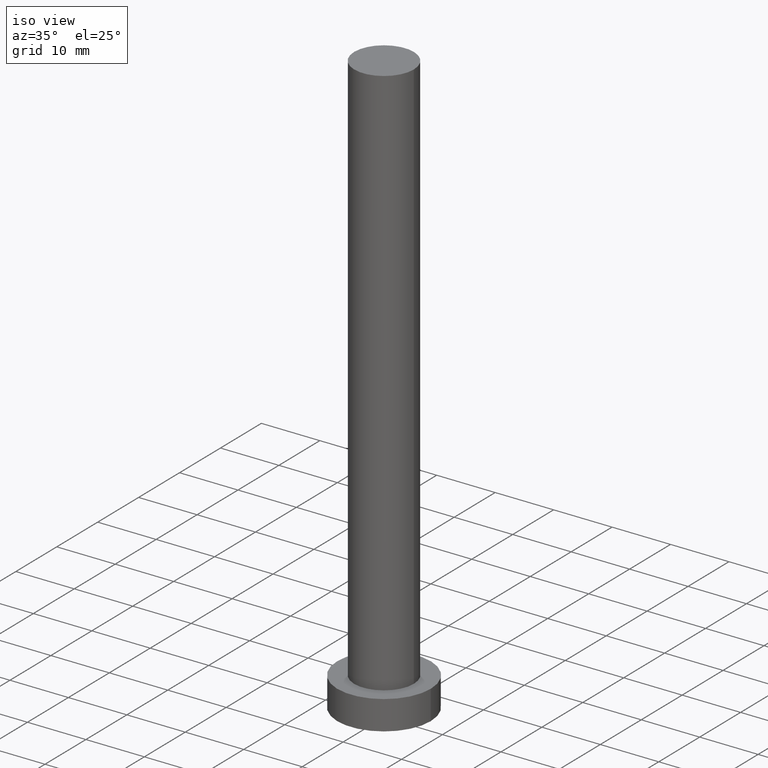
[diagram: clean part render]
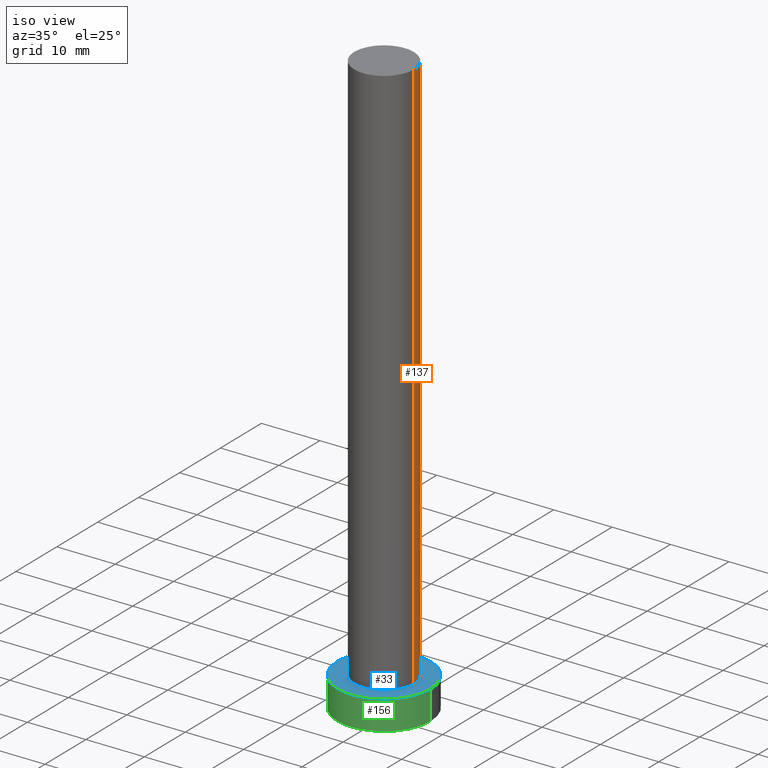
[diagram: same view with three faces highlighted in distinct colors, each labeled with its STEP entity id]
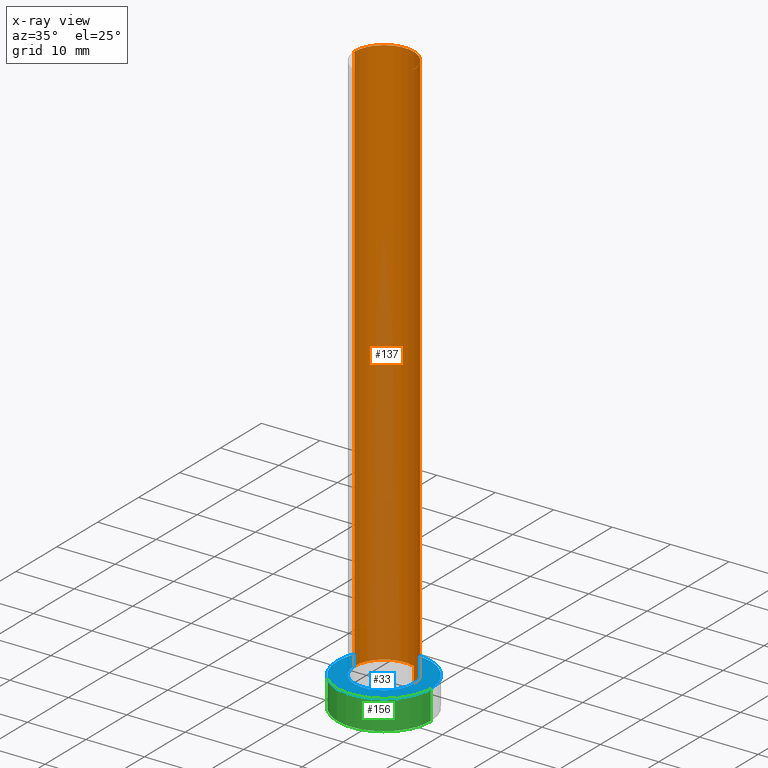
[diagram: x-ray of the same camera — body ghosted, the three highlighted faces saturated]
A machine part, iso view with three faces highlighted in distinct colors.
The next image is the same camera in x-ray (body ghosted, the three faces saturated) — at least one of them is partly hidden behind the body in this view.
Their STEP definitions:

[orange] entity #137 — the highlighted cylindrical surface (edge-blend (fillet) strip) has radius 5.1 mm, axis along (-0, -0, -1).
#6 = EDGE_LOOP ( 'NONE', ( #191, #111, #104, #48 ) ) ;
#13 = LINE ( 'NONE', #14, #27 ) ;
#14 = CARTESIAN_POINT ( 'NONE',  ( -5.100000000000001421, 0.000000000000000000, 100.0000000000000000 ) ) ;
#26 = DIRECTION ( 'NONE',  ( -1.000000000000000000, 0.000000000000000000, 0.000000000000000000 ) ) ;
#27 = VECTOR ( 'NONE', #160, 1000.000000000000000 ) ;
#31 = DIRECTION ( 'NONE',  ( 0.000000000000000000, 0.000000000000000000, 1.000000000000000000 ) ) ;
#46 = VERTEX_POINT ( 'NONE', #180 ) ;
#48 = ORIENTED_EDGE ( 'NONE', *, *, #64, .F. ) ;
#54 = DIRECTION ( 'NONE',  ( 1.000000000000000000, 0.000000000000000000, 0.000000000000000000 ) ) ;
#61 = DIRECTION ( 'NONE',  ( 0.000000000000000000, 0.000000000000000000, 1.000000000000000000 ) ) ;
#62 = VERTEX_POINT ( 'NONE', #228 ) ;
#64 = EDGE_CURVE ( 'NONE', #232, #140, #13, .T. ) ;
#67 = DIRECTION ( 'NONE',  ( -0.000000000000000000, -0.000000000000000000, -1.000000000000000000 ) ) ;
#70 = LINE ( 'NONE', #128, #126 ) ;
#88 = CIRCLE ( 'NONE', #253, 5.100000000000001421 ) ;
#104 = ORIENTED_EDGE ( 'NONE', *, *, #113, .T. ) ;
#111 = ORIENTED_EDGE ( 'NONE', *, *, #190, .T. ) ;
#113 = EDGE_CURVE ( 'NONE', #62, #140, #238, .T. ) ;
#126 = VECTOR ( 'NONE', #149, 1000.000000000000000 ) ;
#128 = CARTESIAN_POINT ( 'NONE',  ( 5.100000000000001421, 6.245698675651502811E-16, 100.0000000000000000 ) ) ;
#131 = CARTESIAN_POINT ( 'NONE',  ( -5.100000000000001421, 0.000000000000000000, 100.0000000000000000 ) ) ;
#136 = CYLINDRICAL_SURFACE ( 'NONE', #181, 5.100000000000001421 ) ;
#137 = ADVANCED_FACE ( 'NONE', ( #255 ), #136, .T. ) ;
#140 = VERTEX_POINT ( 'NONE', #237 ) ;
#141 = CARTESIAN_POINT ( 'NONE',  ( 0.000000000000000000, 0.000000000000000000, 5.000000000000000000 ) ) ;
#149 = DIRECTION ( 'NONE',  ( -0.000000000000000000, -0.000000000000000000, -1.000000000000000000 ) ) ;
#160 = DIRECTION ( 'NONE',  ( -0.000000000000000000, -0.000000000000000000, -1.000000000000000000 ) ) ;
#180 = CARTESIAN_POINT ( 'NONE',  ( 5.100000000000001421, 6.245698675651502811E-16, 100.0000000000000000 ) ) ;
#181 = AXIS2_PLACEMENT_3D ( 'NONE', #199, #67, #26 ) ;
#187 = CARTESIAN_POINT ( 'NONE',  ( 0.000000000000000000, 0.000000000000000000, 100.0000000000000000 ) ) ;
#190 = EDGE_CURVE ( 'NONE', #46, #62, #70, .T. ) ;
#191 = ORIENTED_EDGE ( 'NONE', *, *, #231, .F. ) ;
#193 = DIRECTION ( 'NONE',  ( 1.000000000000000000, 0.000000000000000000, 0.000000000000000000 ) ) ;
#199 = CARTESIAN_POINT ( 'NONE',  ( 0.000000000000000000, 0.000000000000000000, 100.0000000000000000 ) ) ;
#228 = CARTESIAN_POINT ( 'NONE',  ( 5.100000000000001421, 6.245698675651502811E-16, 5.000000000000000000 ) ) ;
#231 = EDGE_CURVE ( 'NONE', #46, #232, #88, .T. ) ;
#232 = VERTEX_POINT ( 'NONE', #131 ) ;
#233 = AXIS2_PLACEMENT_3D ( 'NONE', #141, #61, #193 ) ;
#237 = CARTESIAN_POINT ( 'NONE',  ( -5.100000000000001421, 0.000000000000000000, 5.000000000000000000 ) ) ;
#238 = CIRCLE ( 'NONE', #233, 5.100000000000001421 ) ;
#253 = AXIS2_PLACEMENT_3D ( 'NONE', #187, #31, #54 ) ;
#255 = FACE_OUTER_BOUND ( 'NONE', #6, .T. ) ;

[blue] entity #33 — the highlighted planar face has unit normal (0, 0, 1).
#8 = ORIENTED_EDGE ( 'NONE', *, *, #36, .F. ) ;
#9 = DIRECTION ( 'NONE',  ( 0.000000000000000000, 0.000000000000000000, 1.000000000000000000 ) ) ;
#12 = ORIENTED_EDGE ( 'NONE', *, *, #113, .F. ) ;
#21 = DIRECTION ( 'NONE',  ( 1.000000000000000000, 0.000000000000000000, 0.000000000000000000 ) ) ;
#23 = CARTESIAN_POINT ( 'NONE',  ( 0.000000000000000000, 0.000000000000000000, 5.000000000000000000 ) ) ;
#30 = CARTESIAN_POINT ( 'NONE',  ( 0.000000000000000000, 0.000000000000000000, 5.000000000000000000 ) ) ;
#33 = ADVANCED_FACE ( 'NONE', ( #151, #112 ), #210, .T. ) ;
#34 = EDGE_LOOP ( 'NONE', ( #8, #12 ) ) ;
#36 = EDGE_CURVE ( 'NONE', #140, #62, #120, .T. ) ;
#61 = DIRECTION ( 'NONE',  ( 0.000000000000000000, 0.000000000000000000, 1.000000000000000000 ) ) ;
#62 = VERTEX_POINT ( 'NONE', #228 ) ;
#76 = AXIS2_PLACEMENT_3D ( 'NONE', #214, #197, #200 ) ;
#78 = DIRECTION ( 'NONE',  ( 0.000000000000000000, 0.000000000000000000, 1.000000000000000000 ) ) ;
#112 = FACE_OUTER_BOUND ( 'NONE', #125, .T. ) ;
#113 = EDGE_CURVE ( 'NONE', #62, #140, #238, .T. ) ;
#120 = CIRCLE ( 'NONE', #188, 5.100000000000001421 ) ;
#125 = EDGE_LOOP ( 'NONE', ( #162, #215 ) ) ;
#140 = VERTEX_POINT ( 'NONE', #237 ) ;
#141 = CARTESIAN_POINT ( 'NONE',  ( 0.000000000000000000, 0.000000000000000000, 5.000000000000000000 ) ) ;
#147 = EDGE_CURVE ( 'NONE', #167, #168, #165, .T. ) ;
#150 = EDGE_CURVE ( 'NONE', #168, #167, #159, .T. ) ;
#151 = FACE_BOUND ( 'NONE', #34, .T. ) ;
#159 = CIRCLE ( 'NONE', #76, 8.000000000000000000 ) ;
#162 = ORIENTED_EDGE ( 'NONE', *, *, #147, .T. ) ;
#165 = CIRCLE ( 'NONE', #196, 8.000000000000000000 ) ;
#167 = VERTEX_POINT ( 'NONE', #201 ) ;
#168 = VERTEX_POINT ( 'NONE', #184 ) ;
#184 = CARTESIAN_POINT ( 'NONE',  ( 8.000000000000000000, 9.797174393178825657E-16, 5.000000000000000000 ) ) ;
#188 = AXIS2_PLACEMENT_3D ( 'NONE', #30, #9, #246 ) ;
#192 = CARTESIAN_POINT ( 'NONE',  ( 0.000000000000000000, 0.000000000000000000, 5.000000000000000000 ) ) ;
#193 = DIRECTION ( 'NONE',  ( 1.000000000000000000, 0.000000000000000000, 0.000000000000000000 ) ) ;
#196 = AXIS2_PLACEMENT_3D ( 'NONE', #23, #217, #21 ) ;
#197 = DIRECTION ( 'NONE',  ( 0.000000000000000000, 0.000000000000000000, 1.000000000000000000 ) ) ;
#200 = DIRECTION ( 'NONE',  ( 1.000000000000000000, 0.000000000000000000, 0.000000000000000000 ) ) ;
#201 = CARTESIAN_POINT ( 'NONE',  ( -8.000000000000000000, 0.000000000000000000, 5.000000000000000000 ) ) ;
#205 = DIRECTION ( 'NONE',  ( 1.000000000000000000, 0.000000000000000000, -0.000000000000000000 ) ) ;
#210 = PLANE ( 'NONE',  #229 ) ;
#214 = CARTESIAN_POINT ( 'NONE',  ( 0.000000000000000000, 0.000000000000000000, 5.000000000000000000 ) ) ;
#215 = ORIENTED_EDGE ( 'NONE', *, *, #150, .T. ) ;
#217 = DIRECTION ( 'NONE',  ( 0.000000000000000000, 0.000000000000000000, 1.000000000000000000 ) ) ;
#228 = CARTESIAN_POINT ( 'NONE',  ( 5.100000000000001421, 6.245698675651502811E-16, 5.000000000000000000 ) ) ;
#229 = AXIS2_PLACEMENT_3D ( 'NONE', #192, #78, #205 ) ;
#233 = AXIS2_PLACEMENT_3D ( 'NONE', #141, #61, #193 ) ;
#237 = CARTESIAN_POINT ( 'NONE',  ( -5.100000000000001421, 0.000000000000000000, 5.000000000000000000 ) ) ;
#238 = CIRCLE ( 'NONE', #233, 5.100000000000001421 ) ;
#246 = DIRECTION ( 'NONE',  ( 1.000000000000000000, 0.000000000000000000, 0.000000000000000000 ) ) ;

[green] entity #156 — the highlighted cylindrical surface (partial cylindrical patch) has radius 8 mm, axis along (-0, -0, -1).
#4 = EDGE_CURVE ( 'NONE', #168, #247, #155, .T. ) ;
#18 = CYLINDRICAL_SURFACE ( 'NONE', #142, 8.000000000000000000 ) ;
#21 = DIRECTION ( 'NONE',  ( 1.000000000000000000, 0.000000000000000000, 0.000000000000000000 ) ) ;
#23 = CARTESIAN_POINT ( 'NONE',  ( 0.000000000000000000, 0.000000000000000000, 5.000000000000000000 ) ) ;
#38 = VERTEX_POINT ( 'NONE', #72 ) ;
#39 = EDGE_CURVE ( 'NONE', #167, #38, #153, .T. ) ;
#40 = CIRCLE ( 'NONE', #93, 8.000000000000000000 ) ;
#42 = ORIENTED_EDGE ( 'NONE', *, *, #4, .F. ) ;
#45 = DIRECTION ( 'NONE',  ( -1.000000000000000000, 0.000000000000000000, 0.000000000000000000 ) ) ;
#49 = CARTESIAN_POINT ( 'NONE',  ( 8.000000000000000000, 9.797174393178825657E-16, 0.000000000000000000 ) ) ;
#52 = CARTESIAN_POINT ( 'NONE',  ( -8.000000000000000000, 0.000000000000000000, 5.000000000000000000 ) ) ;
#72 = CARTESIAN_POINT ( 'NONE',  ( -8.000000000000000000, 0.000000000000000000, 0.000000000000000000 ) ) ;
#93 = AXIS2_PLACEMENT_3D ( 'NONE', #94, #189, #175 ) ;
#94 = CARTESIAN_POINT ( 'NONE',  ( 0.000000000000000000, 0.000000000000000000, 0.000000000000000000 ) ) ;
#98 = VECTOR ( 'NONE', #114, 1000.000000000000000 ) ;
#108 = VECTOR ( 'NONE', #177, 1000.000000000000000 ) ;
#114 = DIRECTION ( 'NONE',  ( -0.000000000000000000, -0.000000000000000000, -1.000000000000000000 ) ) ;
#118 = ORIENTED_EDGE ( 'NONE', *, *, #39, .T. ) ;
#119 = CARTESIAN_POINT ( 'NONE',  ( 0.000000000000000000, 0.000000000000000000, 5.000000000000000000 ) ) ;
#142 = AXIS2_PLACEMENT_3D ( 'NONE', #119, #182, #45 ) ;
#144 = ORIENTED_EDGE ( 'NONE', *, *, #234, .T. ) ;
#146 = EDGE_LOOP ( 'NONE', ( #42, #208, #118, #144 ) ) ;
#147 = EDGE_CURVE ( 'NONE', #167, #168, #165, .T. ) ;
#153 = LINE ( 'NONE', #52, #98 ) ;
#155 = LINE ( 'NONE', #243, #108 ) ;
#156 = ADVANCED_FACE ( 'NONE', ( #198 ), #18, .T. ) ;
#165 = CIRCLE ( 'NONE', #196, 8.000000000000000000 ) ;
#167 = VERTEX_POINT ( 'NONE', #201 ) ;
#168 = VERTEX_POINT ( 'NONE', #184 ) ;
#175 = DIRECTION ( 'NONE',  ( 1.000000000000000000, 0.000000000000000000, 0.000000000000000000 ) ) ;
#177 = DIRECTION ( 'NONE',  ( -0.000000000000000000, -0.000000000000000000, -1.000000000000000000 ) ) ;
#182 = DIRECTION ( 'NONE',  ( -0.000000000000000000, -0.000000000000000000, -1.000000000000000000 ) ) ;
#184 = CARTESIAN_POINT ( 'NONE',  ( 8.000000000000000000, 9.797174393178825657E-16, 5.000000000000000000 ) ) ;
#189 = DIRECTION ( 'NONE',  ( 0.000000000000000000, 0.000000000000000000, 1.000000000000000000 ) ) ;
#196 = AXIS2_PLACEMENT_3D ( 'NONE', #23, #217, #21 ) ;
#198 = FACE_OUTER_BOUND ( 'NONE', #146, .T. ) ;
#201 = CARTESIAN_POINT ( 'NONE',  ( -8.000000000000000000, 0.000000000000000000, 5.000000000000000000 ) ) ;
#208 = ORIENTED_EDGE ( 'NONE', *, *, #147, .F. ) ;
#217 = DIRECTION ( 'NONE',  ( 0.000000000000000000, 0.000000000000000000, 1.000000000000000000 ) ) ;
#234 = EDGE_CURVE ( 'NONE', #38, #247, #40, .T. ) ;
#243 = CARTESIAN_POINT ( 'NONE',  ( 8.000000000000000000, 9.797174393178825657E-16, 5.000000000000000000 ) ) ;
#247 = VERTEX_POINT ( 'NONE', #49 ) ;